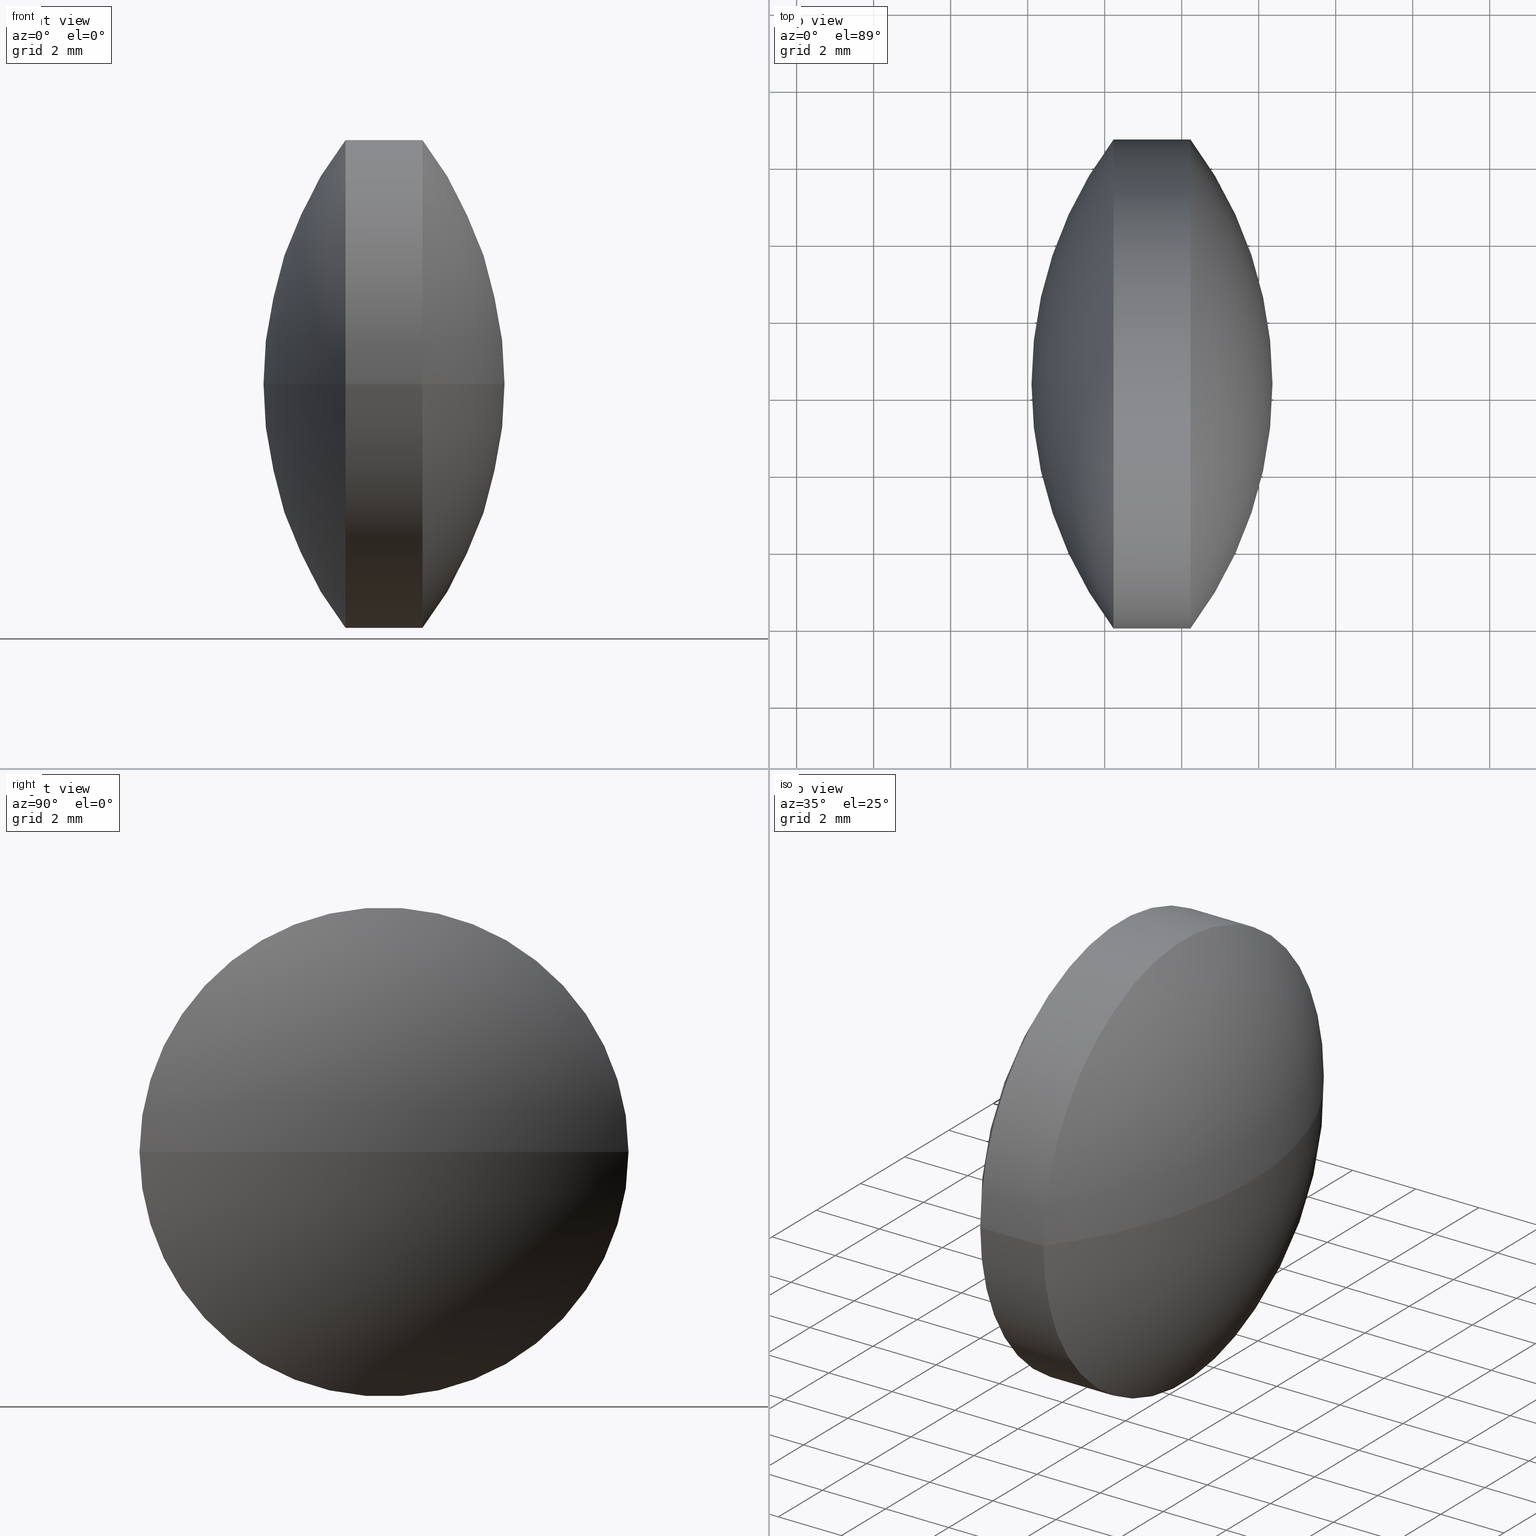
[diagram: canonical four-view strip — front | top / right | iso, engineering-drawing reading convention]
A machine part, canonical four-view strip (front | top / right | iso — engineering-drawing reading convention). The complete STEP part file that produces these views, byte-faithful:
ISO-10303-21;
HEADER;
FILE_DESCRIPTION (( 'STEP AP203' ),
    '1' );
FILE_NAME ('110093.STEP',
    '2019-07-04T02:50:44',
    ( '' ),
    ( '' ),
    'SwSTEP 2.0',
    'SolidWorks 2016',
    '' );
FILE_SCHEMA (( 'CONFIG_CONTROL_DESIGN' ));
ENDSEC;

DATA;
#1 = DIRECTION ( 'NONE',  ( -1.092739197465705700E-015, -1.000000000000000000, 0.0000000000000000000 ) ) ;
#2 = PERSON_AND_ORGANIZATION ( #128, #189 ) ;
#3 = AXIS2_PLACEMENT_3D ( 'NONE', #51, #215, #181 ) ;
#4 = DIRECTION ( 'NONE',  ( -1.000000000000000000, 7.030499645320012300E-016, -0.0000000000000000000 ) ) ;
#5 = APPROVAL_PERSON_ORGANIZATION ( #107, #6, #253 ) ;
#6 = APPROVAL ( #178, 'δָ��' ) ;
#7 = CC_DESIGN_APPROVAL ( #141, ( #150 ) ) ;
#8 = DATE_AND_TIME ( #22, #94 ) ;
#9 = ORIENTED_EDGE ( 'NONE', *, *, #106, .T. ) ;
#10 = ADVANCED_FACE ( 'NONE', ( #239 ), #171, .T. ) ;
#11 = ADVANCED_FACE ( 'NONE', ( #40 ), #77, .T. ) ;
#12 = PRODUCT_RELATED_PRODUCT_CATEGORY ( 'detail', '', ( #35 ) ) ;
#13 = MECHANICAL_CONTEXT ( 'NONE', #163, 'mechanical' ) ;
#14 = APPROVAL_STATUS ( 'not_yet_approved' ) ;
#15 = CC_DESIGN_PERSON_AND_ORGANIZATION_ASSIGNMENT ( #132, #130, ( #150 ) ) ;
#16 = APPROVAL_DATE_TIME ( #32, #302 ) ;
#17 = CIRCLE ( 'NONE', #21, 10.53191963756296800 ) ;
#18 = APPLICATION_PROTOCOL_DEFINITION ( 'international standard', 'config_control_design', 1994, #232 ) ;
#19 = SPHERICAL_SURFACE ( 'NONE', #172, 10.53191963756298900 ) ;
#20 = PRODUCT_RELATED_PRODUCT_CATEGORY ( 'detail', '', ( #62 ) ) ;
#21 = AXIS2_PLACEMENT_3D ( 'NONE', #93, #116, #70 ) ;
#22 = CALENDAR_DATE ( 2019, 4, 7 ) ;
#23 = CARTESIAN_POINT ( 'NONE',  ( 50.63137366775140400, 24.30805651159238700, 0.0000000000000000000 ) ) ;
#24 = EDGE_CURVE ( 'NONE', #27, #64, #136, .T. ) ;
#25 = COORDINATED_UNIVERSAL_TIME_OFFSET ( 8, 0, .AHEAD. ) ;
#26 = CARTESIAN_POINT ( 'NONE',  ( 0.0000000000000000000, 0.0000000000000000000, 0.0000000000000000000 ) ) ;
#27 = VERTEX_POINT ( 'NONE', #210 ) ;
#28 = CC_DESIGN_PERSON_AND_ORGANIZATION_ASSIGNMENT ( #108, #281, ( #230 ) ) ;
#29 = CARTESIAN_POINT ( 'NONE',  ( 50.63137366775140400, 24.30805651159238700, 0.0000000000000000000 ) ) ;
#30 = COORDINATED_UNIVERSAL_TIME_OFFSET ( 8, 0, .AHEAD. ) ;
#31 = ORIENTED_EDGE ( 'NONE', *, *, #162, .F. ) ;
#32 = DATE_AND_TIME ( #268, #158 ) ;
#33 = APPROVAL ( #229, 'δָ��' ) ;
#34 = ADVANCED_FACE ( 'NONE', ( #203 ), #66, .T. ) ;
#35 = PRODUCT ( '110093', '110093', '', ( #13 ) ) ;
#36 = PRODUCT_DEFINITION ( 'δ֪', '', #225, #105 ) ;
#37 = ORIENTED_EDGE ( 'NONE', *, *, #24, .F. ) ;
#38 = LOCAL_TIME ( 10, 50, 44.00000000000000000, #292 ) ;
#39 = DATE_TIME_ROLE ( 'classification_date' ) ;
#40 = FACE_OUTER_BOUND ( 'NONE', #115, .T. ) ;
#41 = PERSON_AND_ORGANIZATION_ROLE ( 'creator' ) ;
#42 = APPROVAL_ROLE ( '' ) ;
#43 = CC_DESIGN_APPROVAL ( #302, ( #147 ) ) ;
#44 = DIRECTION ( 'NONE',  ( 0.0000000000000000000, 0.0000000000000000000, -1.000000000000000000 ) ) ;
#45 = DIRECTION ( 'NONE',  ( -1.092739197465705700E-015, -1.000000000000000000, 0.0000000000000000000 ) ) ;
#46 = DATE_AND_TIME ( #233, #127 ) ;
#47 = ORIENTED_EDGE ( 'NONE', *, *, #24, .T. ) ;
#48 = DIRECTION ( 'NONE',  ( -1.000000000000000000, 7.030499645320012300E-016, -0.0000000000000000000 ) ) ;
#49 = CALENDAR_DATE ( 2019, 4, 7 ) ;
#50 = CARTESIAN_POINT ( 'NONE',  ( 46.35873974447412800, 24.30805651159239000, 0.0000000000000000000 ) ) ;
#51 = CARTESIAN_POINT ( 'NONE',  ( 42.22906260161697400, 24.30805651159239400, 0.0000000000000000000 ) ) ;
#52 = PRODUCT_DEFINITION_FORMATION_WITH_SPECIFIED_SOURCE ( '�κ�', '', #62, .NOT_KNOWN. ) ;
#53 = CARTESIAN_POINT ( 'NONE',  ( 42.22906260161697400, 17.95805651159240000, -7.776507174585683300E-016 ) ) ;
#54 = DIRECTION ( 'NONE',  ( 0.0000000000000000000, 1.000000000000000000, 1.224646799147353200E-016 ) ) ;
#55 = PERSON_AND_ORGANIZATION ( #128, #189 ) ;
#56 = ORIENTED_EDGE ( 'NONE', *, *, #126, .T. ) ;
#57 = CC_DESIGN_SECURITY_CLASSIFICATION ( #147, ( #52 ) ) ;
#58 = LOCAL_TIME ( 10, 50, 44.00000000000000000, #298 ) ;
#59 = AXIS2_PLACEMENT_3D ( 'NONE', #68, #44, #283 ) ;
#60 = EDGE_LOOP ( 'NONE', ( #282, #179, #252 ) ) ;
#61 = PERSON_AND_ORGANIZATION ( #128, #189 ) ;
#62 = PRODUCT ( '110093', '110093', '', ( #279 ) ) ;
#63 = ADVANCED_BREP_SHAPE_REPRESENTATION ( '110093', ( #258, #186 ), #97 ) ;
#64 = VERTEX_POINT ( 'NONE', #237 ) ;
#65 = CC_DESIGN_DATE_AND_TIME_ASSIGNMENT ( #95, #131, ( #230 ) ) ;
#66 = SPHERICAL_SURFACE ( 'NONE', #182, 10.53191963756296600 ) ;
#67 = PERSON_AND_ORGANIZATION_ROLE ( 'design_owner' ) ;
#68 = CARTESIAN_POINT ( 'NONE',  ( 35.82682010691116400, 24.30805651159239700, 0.0000000000000000000 ) ) ;
#69 = CIRCLE ( 'NONE', #213, 10.53191963756296400 ) ;
#70 = DIRECTION ( 'NONE',  ( 1.000000000000000000, 0.0000000000000000000, 0.0000000000000000000 ) ) ;
#71 = DIRECTION ( 'NONE',  ( -1.000000000000000000, 7.030499645320012300E-016, -0.0000000000000000000 ) ) ;
#72 =( NAMED_UNIT ( * ) PLANE_ANGLE_UNIT ( ) SI_UNIT ( $, .RADIAN. ) );
#73 = CARTESIAN_POINT ( 'NONE',  ( 35.82682010691117100, 30.65805651159239500, 7.776507174585689200E-016 ) ) ;
#74 = CARTESIAN_POINT ( 'NONE',  ( 50.63137366775140400, 24.30805651159238700, 0.0000000000000000000 ) ) ;
#75 = DATE_AND_TIME ( #142, #211 ) ;
#76 = LOCAL_TIME ( 10, 50, 44.00000000000000000, #145 ) ;
#77 = SPHERICAL_SURFACE ( 'NONE', #59, 10.53191963756296600 ) ;
#78 = CC_DESIGN_PERSON_AND_ORGANIZATION_ASSIGNMENT ( #238, #226, ( #52 ) ) ;
#79 = FACE_OUTER_BOUND ( 'NONE', #218, .T. ) ;
#80 = CIRCLE ( 'NONE', #288, 6.349999999999997900 ) ;
#81 = APPROVAL ( #90, 'δָ��' ) ;
#82 = APPROVAL_DATE_TIME ( #75, #141 ) ;
#83 = CC_DESIGN_SECURITY_CLASSIFICATION ( #150, ( #225 ) ) ;
#84 = APPROVAL_STATUS ( 'not_yet_approved' ) ;
#85 = AXIS2_PLACEMENT_3D ( 'NONE', #183, #48, #45 ) ;
#86 = DATE_TIME_ROLE ( 'classification_date' ) ;
#87 = PERSON_AND_ORGANIZATION ( #128, #189 ) ;
#88 = CLOSED_SHELL ( 'NONE', ( #221, #34, #223, #247, #11, #10 ) ) ;
#89 = DIRECTION ( 'NONE',  ( 1.000000000000000000, 0.0000000000000000000, 0.0000000000000000000 ) ) ;
#90 = APPROVAL_STATUS ( 'not_yet_approved' ) ;
#91 = ORIENTED_EDGE ( 'NONE', *, *, #106, .F. ) ;
#92 = SECURITY_CLASSIFICATION_LEVEL ( 'unclassified' ) ;
#93 = CARTESIAN_POINT ( 'NONE',  ( 35.82682010691116400, 24.30805651159239700, 0.0000000000000000000 ) ) ;
#94 = LOCAL_TIME ( 10, 50, 44.00000000000000000, #274 ) ;
#95 = DATE_AND_TIME ( #49, #297 ) ;
#96 = DATE_AND_TIME ( #194, #76 ) ;
#97 =( GEOMETRIC_REPRESENTATION_CONTEXT ( 3 ) GLOBAL_UNCERTAINTY_ASSIGNED_CONTEXT ( ( #199 ) ) GLOBAL_UNIT_ASSIGNED_CONTEXT ( ( #168, #72, #241 ) ) REPRESENTATION_CONTEXT ( 'NONE', 'WORKASPACE' ) );
#98 = DIRECTION ( 'NONE',  ( -1.092739197465706300E-015, -1.000000000000000000, 0.0000000000000000000 ) ) ;
#99 = DIRECTION ( 'NONE',  ( 8.609878887047754700E-032, 1.224646799147353200E-016, -1.000000000000000000 ) ) ;
#100 = CC_DESIGN_APPROVAL ( #81, ( #36 ) ) ;
#101 = ORIENTED_EDGE ( 'NONE', *, *, #148, .F. ) ;
#102 = AXIS2_PLACEMENT_3D ( 'NONE', #23, #234, #208 ) ;
#103 = PERSON_AND_ORGANIZATION ( #128, #189 ) ;
#104 = APPROVAL_PERSON_ORGANIZATION ( #120, #33, #42 ) ;
#105 = DESIGN_CONTEXT ( 'detailed design', #273, 'design' ) ;
#106 = EDGE_CURVE ( 'NONE', #293, #235, #185, .T. ) ;
#107 = PERSON_AND_ORGANIZATION ( #128, #189 ) ;
#108 = PERSON_AND_ORGANIZATION ( #128, #189 ) ;
#109 = PERSON_AND_ORGANIZATION_ROLE ( 'classification_officer' ) ;
#110 = PERSON_AND_ORGANIZATION_ROLE ( 'creator' ) ;
#111 = AXIS2_PLACEMENT_3D ( 'NONE', #166, #262, #98 ) ;
#112 = EDGE_CURVE ( 'NONE', #133, #267, #17, .T. ) ;
#113 = DIRECTION ( 'NONE',  ( 1.000000000000000000, 0.0000000000000000000, 0.0000000000000000000 ) ) ;
#114 = PERSON_AND_ORGANIZATION ( #128, #189 ) ;
#115 = EDGE_LOOP ( 'NONE', ( #291, #270, #31 ) ) ;
#116 = DIRECTION ( 'NONE',  ( 0.0000000000000000000, 0.0000000000000000000, 1.000000000000000000 ) ) ;
#117 = CC_DESIGN_PERSON_AND_ORGANIZATION_ASSIGNMENT ( #61, #41, ( #225 ) ) ;
#118 = APPROVAL_DATE_TIME ( #219, #277 ) ;
#119 = CARTESIAN_POINT ( 'NONE',  ( 44.22913117304555200, 30.65805651159239200, 0.0000000000000000000 ) ) ;
#120 = PERSON_AND_ORGANIZATION ( #128, #189 ) ;
#121 = DIRECTION ( 'NONE',  ( 6.588441749174644500E-016, 1.000000000000000000, 0.0000000000000000000 ) ) ;
#122 = DIRECTION ( 'NONE',  ( -1.092739197465705700E-015, -1.000000000000000000, 0.0000000000000000000 ) ) ;
#123 = LOCAL_TIME ( 10, 50, 44.00000000000000000, #295 ) ;
#124 = CC_DESIGN_PERSON_AND_ORGANIZATION_ASSIGNMENT ( #261, #301, ( #52 ) ) ;
#125 = VECTOR ( 'NONE', #184, 1000.000000000000000 ) ;
#126 = EDGE_CURVE ( 'NONE', #267, #293, #80, .T. ) ;
#127 = LOCAL_TIME ( 10, 50, 44.00000000000000000, #149 ) ;
#128 = PERSON ( 'δָ��', 'δָ��', 'δָ��', ('δָ��'), ('δָ��'), ('δָ��') ) ;
#129 = CC_DESIGN_PERSON_AND_ORGANIZATION_ASSIGNMENT ( #114, #204, ( #225 ) ) ;
#130 = PERSON_AND_ORGANIZATION_ROLE ( 'classification_officer' ) ;
#131 = DATE_TIME_ROLE ( 'creation_date' ) ;
#132 = PERSON_AND_ORGANIZATION ( #128, #189 ) ;
#133 = VERTEX_POINT ( 'NONE', #50 ) ;
#134 = ORIENTED_EDGE ( 'NONE', *, *, #265, .F. ) ;
#135 = PERSON_AND_ORGANIZATION_ROLE ( 'design_owner' ) ;
#136 = CIRCLE ( 'NONE', #102, 10.53191963756298900 ) ;
#137 = APPROVAL_ROLE ( '' ) ;
#138 = CARTESIAN_POINT ( 'NONE',  ( 35.82682010691116400, 24.30805651159239700, 0.0000000000000000000 ) ) ;
#139 = CARTESIAN_POINT ( 'NONE',  ( 44.22913117304554500, 24.30805651159239000, 0.0000000000000000000 ) ) ;
#140 = CIRCLE ( 'NONE', #111, 6.349999999999994300 ) ;
#141 = APPROVAL ( #251, 'δָ��' ) ;
#142 = CALENDAR_DATE ( 2019, 4, 7 ) ;
#143 = EDGE_LOOP ( 'NONE', ( #134, #56, #9, #101 ) ) ;
#144 = DIRECTION ( 'NONE',  ( -1.000000000000000000, 7.030499645320012300E-016, -0.0000000000000000000 ) ) ;
#145 = COORDINATED_UNIVERSAL_TIME_OFFSET ( 8, 0, .AHEAD. ) ;
#146 = DIRECTION ( 'NONE',  ( 6.588441749174644500E-016, 1.000000000000000000, 0.0000000000000000000 ) ) ;
#147 = SECURITY_CLASSIFICATION ( '', '', #92 ) ;
#148 = EDGE_CURVE ( 'NONE', #27, #235, #271, .T. ) ;
#149 = COORDINATED_UNIVERSAL_TIME_OFFSET ( 8, 0, .AHEAD. ) ;
#150 = SECURITY_CLASSIFICATION ( '', '', #156 ) ;
#151 = PERSON_AND_ORGANIZATION ( #128, #189 ) ;
#152 = APPROVAL_PERSON_ORGANIZATION ( #87, #302, #137 ) ;
#153 = ORIENTED_EDGE ( 'NONE', *, *, #236, .F. ) ;
#154 = ORIENTED_EDGE ( 'NONE', *, *, #236, .T. ) ;
#155 = FACE_OUTER_BOUND ( 'NONE', #207, .T. ) ;
#156 = SECURITY_CLASSIFICATION_LEVEL ( 'unclassified' ) ;
#157 = APPROVAL_PERSON_ORGANIZATION ( #103, #277, #201 ) ;
#158 = LOCAL_TIME ( 10, 50, 44.00000000000000000, #25 ) ;
#159 = DIRECTION ( 'NONE',  ( 0.0000000000000000000, 0.0000000000000000000, 1.000000000000000000 ) ) ;
#160 = DIRECTION ( 'NONE',  ( 0.0000000000000000000, 0.0000000000000000000, 1.000000000000000000 ) ) ;
#161 = CC_DESIGN_APPROVAL ( #277, ( #52 ) ) ;
#162 = EDGE_CURVE ( 'NONE', #293, #267, #257, .T. ) ;
#163 = APPLICATION_CONTEXT ( 'configuration controlled 3d designs of mechanical parts and assemblies' ) ;
#164 = CC_DESIGN_PERSON_AND_ORGANIZATION_ASSIGNMENT ( #55, #110, ( #36 ) ) ;
#165 = CALENDAR_DATE ( 2019, 4, 7 ) ;
#166 = CARTESIAN_POINT ( 'NONE',  ( 42.22906260161697400, 24.30805651159239400, 0.0000000000000000000 ) ) ;
#167 = DIRECTION ( 'NONE',  ( 0.0000000000000000000, 0.0000000000000000000, -1.000000000000000000 ) ) ;
#168 =( LENGTH_UNIT ( ) NAMED_UNIT ( * ) SI_UNIT ( .MILLI., .METRE. ) );
#169 = DATE_AND_TIME ( #244, #224 ) ;
#170 = DATE_AND_TIME ( #165, #58 ) ;
#171 = CYLINDRICAL_SURFACE ( 'NONE', #85, 6.349999999999997900 ) ;
#172 = AXIS2_PLACEMENT_3D ( 'NONE', #217, #243, #121 ) ;
#173 = EDGE_CURVE ( 'NONE', #235, #64, #209, .T. ) ;
#174 = DATE_AND_TIME ( #304, #123 ) ;
#175 = CALENDAR_DATE ( 2019, 4, 7 ) ;
#176 = CC_DESIGN_APPROVAL ( #6, ( #225 ) ) ;
#177 = AXIS2_PLACEMENT_3D ( 'NONE', #139, #71, #240 ) ;
#178 = APPROVAL_STATUS ( 'not_yet_approved' ) ;
#179 = ORIENTED_EDGE ( 'NONE', *, *, #198, .T. ) ;
#180 = COORDINATED_UNIVERSAL_TIME_OFFSET ( 8, 0, .AHEAD. ) ;
#181 = DIRECTION ( 'NONE',  ( -1.092739197465706300E-015, -1.000000000000000000, 0.0000000000000000000 ) ) ;
#182 = AXIS2_PLACEMENT_3D ( 'NONE', #138, #303, #256 ) ;
#183 = CARTESIAN_POINT ( 'NONE',  ( 35.82682010691116400, 24.30805651159239700, 0.0000000000000000000 ) ) ;
#184 = DIRECTION ( 'NONE',  ( -1.000000000000000000, 7.030499645320012300E-016, -0.0000000000000000000 ) ) ;
#185 = LINE ( 'NONE', #305, #125 ) ;
#186 = AXIS2_PLACEMENT_3D ( 'NONE', #26, #159, #113 ) ;
#187 = DIRECTION ( 'NONE',  ( 0.0000000000000000000, 1.000000000000000000, 1.224646799147353500E-016 ) ) ;
#188 = ORIENTED_EDGE ( 'NONE', *, *, #265, .T. ) ;
#189 = ORGANIZATION ( 'δָ��', 'δָ��', '' ) ;
#190 = CC_DESIGN_PERSON_AND_ORGANIZATION_ASSIGNMENT ( #220, #67, ( #35 ) ) ;
#191 = ORIENTED_EDGE ( 'NONE', *, *, #173, .F. ) ;
#192 = EDGE_LOOP ( 'NONE', ( #246, #278, #37 ) ) ;
#193 = AXIS2_PLACEMENT_3D ( 'NONE', #289, #160, #89 ) ;
#194 = CALENDAR_DATE ( 2019, 4, 7 ) ;
#195 = PRODUCT_DEFINITION_SHAPE ( 'NONE', 'NONE',  #36 ) ;
#196 = SPHERICAL_SURFACE ( 'NONE', #294, 10.53191963756298900 ) ;
#197 = FACE_OUTER_BOUND ( 'NONE', #192, .T. ) ;
#198 = EDGE_CURVE ( 'NONE', #133, #293, #69, .T. ) ;
#199 = UNCERTAINTY_MEASURE_WITH_UNIT (LENGTH_MEASURE( 1.000000000000000100E-005 ), #168, 'distance_accuracy_value', 'NONE');
#200 = SHAPE_DEFINITION_REPRESENTATION ( #195, #63 ) ;
#201 = APPROVAL_ROLE ( '' ) ;
#202 = APPROVAL_PERSON_ORGANIZATION ( #276, #81, #296 ) ;
#203 = FACE_OUTER_BOUND ( 'NONE', #60, .T. ) ;
#204 = PERSON_AND_ORGANIZATION_ROLE ( 'design_supplier' ) ;
#205 = APPLICATION_PROTOCOL_DEFINITION ( 'international standard', 'config_control_design', 1994, #273 ) ;
#206 = CC_DESIGN_DATE_AND_TIME_ASSIGNMENT ( #8, #39, ( #150 ) ) ;
#207 = EDGE_LOOP ( 'NONE', ( #248, #188, #153, #91 ) ) ;
#208 = DIRECTION ( 'NONE',  ( 1.000000000000000000, 0.0000000000000000000, 0.0000000000000000000 ) ) ;
#209 = CIRCLE ( 'NONE', #259, 10.53191963756298900 ) ;
#210 = CARTESIAN_POINT ( 'NONE',  ( 42.22906260161698100, 30.65805651159238800, 0.0000000000000000000 ) ) ;
#211 = LOCAL_TIME ( 10, 50, 44.00000000000000000, #30 ) ;
#212 = CC_DESIGN_DATE_AND_TIME_ASSIGNMENT ( #169, #299, ( #36 ) ) ;
#213 = AXIS2_PLACEMENT_3D ( 'NONE', #286, #216, #187 ) ;
#214 = PERSON_AND_ORGANIZATION ( #128, #189 ) ;
#215 = DIRECTION ( 'NONE',  ( -1.000000000000000000, 7.030499645320012300E-016, -0.0000000000000000000 ) ) ;
#216 = DIRECTION ( 'NONE',  ( 8.609878887047754700E-032, 1.224646799147353200E-016, -1.000000000000000000 ) ) ;
#217 = CARTESIAN_POINT ( 'NONE',  ( 50.63137366775140400, 24.30805651159238700, 0.0000000000000000000 ) ) ;
#218 = EDGE_LOOP ( 'NONE', ( #191, #154, #47 ) ) ;
#219 = DATE_AND_TIME ( #175, #38 ) ;
#220 = PERSON_AND_ORGANIZATION ( #128, #189 ) ;
#221 = ADVANCED_FACE ( 'NONE', ( #155 ), #264, .T. ) ;
#222 = CC_DESIGN_APPROVAL ( #33, ( #230 ) ) ;
#223 = ADVANCED_FACE ( 'NONE', ( #197 ), #196, .T. ) ;
#224 = LOCAL_TIME ( 10, 50, 44.00000000000000000, #180 ) ;
#225 = PRODUCT_DEFINITION_FORMATION_WITH_SPECIFIED_SOURCE ( '�κ�', '', #35, .NOT_KNOWN. ) ;
#226 = PERSON_AND_ORGANIZATION_ROLE ( 'creator' ) ;
#227 = COORDINATED_UNIVERSAL_TIME_OFFSET ( 8, 0, .AHEAD. ) ;
#228 = VECTOR ( 'NONE', #4, 1000.000000000000000 ) ;
#229 = APPROVAL_STATUS ( 'not_yet_approved' ) ;
#230 = PRODUCT_DEFINITION ( 'δ֪', '', #52, #280 ) ;
#231 = APPLICATION_PROTOCOL_DEFINITION ( 'international standard', 'config_control_design', 1994, #300 ) ;
#232 = APPLICATION_CONTEXT ( 'configuration controlled 3d designs of mechanical parts and assemblies' ) ;
#233 = CALENDAR_DATE ( 2019, 4, 7 ) ;
#234 = DIRECTION ( 'NONE',  ( 0.0000000000000000000, 0.0000000000000000000, 1.000000000000000000 ) ) ;
#235 = VERTEX_POINT ( 'NONE', #53 ) ;
#236 = EDGE_CURVE ( 'NONE', #235, #27, #140, .T. ) ;
#237 = CARTESIAN_POINT ( 'NONE',  ( 40.09945403018841100, 24.30805651159239400, 0.0000000000000000000 ) ) ;
#238 = PERSON_AND_ORGANIZATION ( #128, #189 ) ;
#239 = FACE_OUTER_BOUND ( 'NONE', #143, .T. ) ;
#240 = DIRECTION ( 'NONE',  ( -1.092739197465705700E-015, -1.000000000000000000, 0.0000000000000000000 ) ) ;
#241 =( NAMED_UNIT ( * ) SI_UNIT ( $, .STERADIAN. ) SOLID_ANGLE_UNIT ( ) );
#242 = CC_DESIGN_PERSON_AND_ORGANIZATION_ASSIGNMENT ( #214, #109, ( #147 ) ) ;
#243 = DIRECTION ( 'NONE',  ( 0.0000000000000000000, 0.0000000000000000000, -1.000000000000000000 ) ) ;
#244 = CALENDAR_DATE ( 2019, 4, 7 ) ;
#245 = AXIS2_PLACEMENT_3D ( 'NONE', #260, #287, #122 ) ;
#246 = ORIENTED_EDGE ( 'NONE', *, *, #148, .T. ) ;
#247 = ADVANCED_FACE ( 'NONE', ( #79 ), #19, .T. ) ;
#248 = ORIENTED_EDGE ( 'NONE', *, *, #162, .T. ) ;
#249 = APPROVAL_DATE_TIME ( #46, #81 ) ;
#250 = PRODUCT_DEFINITION_SHAPE ( 'NONE', 'NONE',  #230 ) ;
#251 = APPROVAL_STATUS ( 'not_yet_approved' ) ;
#252 = ORIENTED_EDGE ( 'NONE', *, *, #126, .F. ) ;
#253 = APPROVAL_ROLE ( '' ) ;
#254 = CC_DESIGN_PERSON_AND_ORGANIZATION_ASSIGNMENT ( #2, #135, ( #62 ) ) ;
#255 = APPLICATION_PROTOCOL_DEFINITION ( 'international standard', 'config_control_design', 1994, #163 ) ;
#256 = DIRECTION ( 'NONE',  ( 6.588441749174659300E-016, 1.000000000000000000, 0.0000000000000000000 ) ) ;
#257 = CIRCLE ( 'NONE', #177, 6.349999999999997900 ) ;
#258 = MANIFOLD_SOLID_BREP ( '��ת1', #88 ) ;
#259 = AXIS2_PLACEMENT_3D ( 'NONE', #74, #99, #54 ) ;
#260 = CARTESIAN_POINT ( 'NONE',  ( 35.82682010691116400, 24.30805651159239700, 0.0000000000000000000 ) ) ;
#261 = PERSON_AND_ORGANIZATION ( #128, #189 ) ;
#262 = DIRECTION ( 'NONE',  ( -1.000000000000000000, 7.030499645320012300E-016, -0.0000000000000000000 ) ) ;
#263 = CARTESIAN_POINT ( 'NONE',  ( 44.22913117304553800, 17.95805651159238900, -7.776507174585695100E-016 ) ) ;
#264 = CYLINDRICAL_SURFACE ( 'NONE', #245, 6.349999999999997900 ) ;
#265 = EDGE_CURVE ( 'NONE', #267, #27, #272, .T. ) ;
#266 = APPROVAL_PERSON_ORGANIZATION ( #151, #141, #275 ) ;
#267 = VERTEX_POINT ( 'NONE', #119 ) ;
#268 = CALENDAR_DATE ( 2019, 4, 7 ) ;
#269 = CC_DESIGN_DATE_AND_TIME_ASSIGNMENT ( #96, #86, ( #147 ) ) ;
#270 = ORIENTED_EDGE ( 'NONE', *, *, #112, .T. ) ;
#271 = CIRCLE ( 'NONE', #3, 6.349999999999994300 ) ;
#272 = LINE ( 'NONE', #73, #228 ) ;
#273 = APPLICATION_CONTEXT ( 'configuration controlled 3d designs of mechanical parts and assemblies' ) ;
#274 = COORDINATED_UNIVERSAL_TIME_OFFSET ( 8, 0, .AHEAD. ) ;
#275 = APPROVAL_ROLE ( '' ) ;
#276 = PERSON_AND_ORGANIZATION ( #128, #189 ) ;
#277 = APPROVAL ( #84, 'δָ��' ) ;
#278 = ORIENTED_EDGE ( 'NONE', *, *, #173, .T. ) ;
#279 = MECHANICAL_CONTEXT ( 'NONE', #232, 'mechanical' ) ;
#280 = DESIGN_CONTEXT ( 'detailed design', #300, 'design' ) ;
#281 = PERSON_AND_ORGANIZATION_ROLE ( 'creator' ) ;
#282 = ORIENTED_EDGE ( 'NONE', *, *, #112, .F. ) ;
#283 = DIRECTION ( 'NONE',  ( 6.588441749174659300E-016, 1.000000000000000000, 0.0000000000000000000 ) ) ;
#284 = APPROVAL_DATE_TIME ( #170, #33 ) ;
#285 = CARTESIAN_POINT ( 'NONE',  ( 44.22913117304554500, 24.30805651159239000, 0.0000000000000000000 ) ) ;
#286 = CARTESIAN_POINT ( 'NONE',  ( 35.82682010691116400, 24.30805651159239700, 0.0000000000000000000 ) ) ;
#287 = DIRECTION ( 'NONE',  ( -1.000000000000000000, 7.030499645320012300E-016, -0.0000000000000000000 ) ) ;
#288 = AXIS2_PLACEMENT_3D ( 'NONE', #285, #144, #1 ) ;
#289 = CARTESIAN_POINT ( 'NONE',  ( 0.0000000000000000000, 0.0000000000000000000, 0.0000000000000000000 ) ) ;
#290 = APPROVAL_DATE_TIME ( #174, #6 ) ;
#291 = ORIENTED_EDGE ( 'NONE', *, *, #198, .F. ) ;
#292 = COORDINATED_UNIVERSAL_TIME_OFFSET ( 8, 0, .AHEAD. ) ;
#293 = VERTEX_POINT ( 'NONE', #263 ) ;
#294 = AXIS2_PLACEMENT_3D ( 'NONE', #29, #167, #146 ) ;
#295 = COORDINATED_UNIVERSAL_TIME_OFFSET ( 8, 0, .AHEAD. ) ;
#296 = APPROVAL_ROLE ( '' ) ;
#297 = LOCAL_TIME ( 10, 50, 44.00000000000000000, #227 ) ;
#298 = COORDINATED_UNIVERSAL_TIME_OFFSET ( 8, 0, .AHEAD. ) ;
#299 = DATE_TIME_ROLE ( 'creation_date' ) ;
#300 = APPLICATION_CONTEXT ( 'configuration controlled 3d designs of mechanical parts and assemblies' ) ;
#301 = PERSON_AND_ORGANIZATION_ROLE ( 'design_supplier' ) ;
#302 = APPROVAL ( #14, 'δָ��' ) ;
#303 = DIRECTION ( 'NONE',  ( 0.0000000000000000000, 0.0000000000000000000, -1.000000000000000000 ) ) ;
#304 = CALENDAR_DATE ( 2019, 4, 7 ) ;
#305 = CARTESIAN_POINT ( 'NONE',  ( 35.82682010691115700, 17.95805651159240000, 0.0000000000000000000 ) ) ;
ENDSEC;
END-ISO-10303-21;
